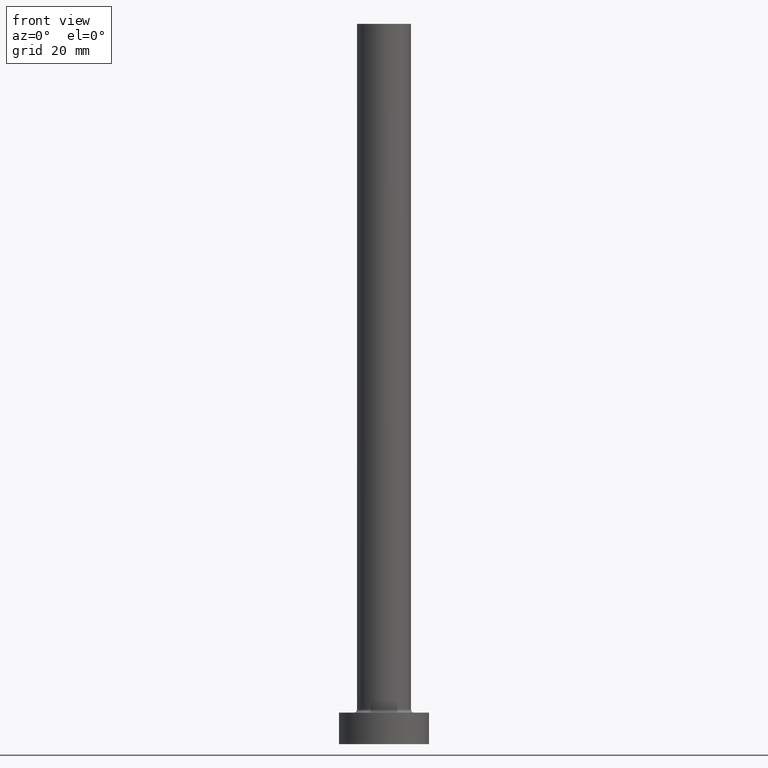
[diagram: clean part render]
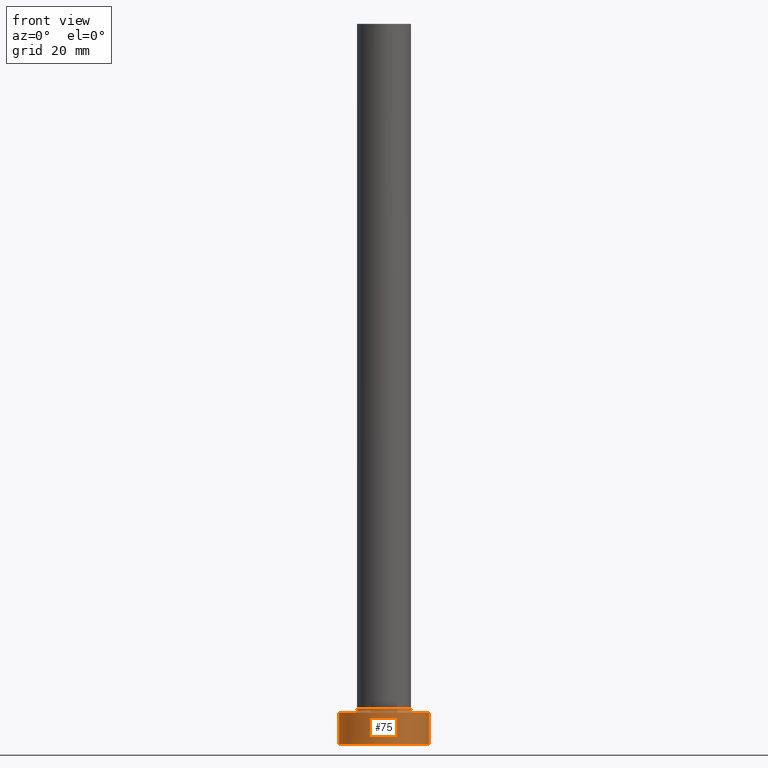
[diagram: same view with one face highlighted and labeled with its STEP entity id]
A machine part, front view. The second image highlights one B-rep face of the part: STEP entity #75.
In plain terms, the highlighted cylindrical surface (partial cylindrical patch) has radius 10 mm, axis along (-0, -0, -1).
Its self-contained STEP definition (entity closure, byte-faithful):
#33 = CIRCLE ( 'NONE', #403, 10.00000000000000000 ) ;
#37 = FACE_OUTER_BOUND ( 'NONE', #366, .T. ) ;
#48 = DIRECTION ( 'NONE',  ( -0.000000000000000000, -0.000000000000000000, -1.000000000000000000 ) ) ;
#75 = ADVANCED_FACE ( 'NONE', ( #37 ), #298, .T. ) ;
#87 = AXIS2_PLACEMENT_3D ( 'NONE', #217, #145, #363 ) ;
#107 = VERTEX_POINT ( 'NONE', #329 ) ;
#119 = DIRECTION ( 'NONE',  ( 1.000000000000000000, 0.000000000000000000, 0.000000000000000000 ) ) ;
#122 = CARTESIAN_POINT ( 'NONE',  ( 0.000000000000000000, 0.000000000000000000, 0.000000000000000000 ) ) ;
#126 = VERTEX_POINT ( 'NONE', #376 ) ;
#128 = CARTESIAN_POINT ( 'NONE',  ( 0.000000000000000000, 0.000000000000000000, 7.000000000000000000 ) ) ;
#145 = DIRECTION ( 'NONE',  ( -0.000000000000000000, -0.000000000000000000, -1.000000000000000000 ) ) ;
#147 = EDGE_CURVE ( 'NONE', #107, #126, #207, .T. ) ;
#207 = LINE ( 'NONE', #281, #383 ) ;
#211 = DIRECTION ( 'NONE',  ( 1.000000000000000000, 0.000000000000000000, 0.000000000000000000 ) ) ;
#217 = CARTESIAN_POINT ( 'NONE',  ( 0.000000000000000000, 0.000000000000000000, 7.000000000000000000 ) ) ;
#228 = AXIS2_PLACEMENT_3D ( 'NONE', #122, #273, #119 ) ;
#257 = CARTESIAN_POINT ( 'NONE',  ( -10.00000000000000000, 0.000000000000000000, 0.000000000000000000 ) ) ;
#263 = EDGE_CURVE ( 'NONE', #420, #126, #369, .T. ) ;
#273 = DIRECTION ( 'NONE',  ( 0.000000000000000000, 0.000000000000000000, 1.000000000000000000 ) ) ;
#281 = CARTESIAN_POINT ( 'NONE',  ( 10.00000000000000000, 1.224646799147353256E-15, 7.000000000000000000 ) ) ;
#283 = CARTESIAN_POINT ( 'NONE',  ( -10.00000000000000000, 0.000000000000000000, 7.000000000000000000 ) ) ;
#298 = CYLINDRICAL_SURFACE ( 'NONE', #87, 10.00000000000000000 ) ;
#299 = VECTOR ( 'NONE', #48, 1000.000000000000000 ) ;
#307 = ORIENTED_EDGE ( 'NONE', *, *, #263, .T. ) ;
#324 = ORIENTED_EDGE ( 'NONE', *, *, #147, .F. ) ;
#329 = CARTESIAN_POINT ( 'NONE',  ( 10.00000000000000000, 1.224646799147353256E-15, 7.000000000000000000 ) ) ;
#333 = ORIENTED_EDGE ( 'NONE', *, *, #365, .T. ) ;
#344 = VERTEX_POINT ( 'NONE', #283 ) ;
#348 = CARTESIAN_POINT ( 'NONE',  ( -10.00000000000000000, 0.000000000000000000, 7.000000000000000000 ) ) ;
#363 = DIRECTION ( 'NONE',  ( -1.000000000000000000, 0.000000000000000000, 0.000000000000000000 ) ) ;
#365 = EDGE_CURVE ( 'NONE', #344, #420, #382, .T. ) ;
#366 = EDGE_LOOP ( 'NONE', ( #324, #416, #333, #307 ) ) ;
#369 = CIRCLE ( 'NONE', #228, 10.00000000000000000 ) ;
#373 = EDGE_CURVE ( 'NONE', #344, #107, #33, .T. ) ;
#376 = CARTESIAN_POINT ( 'NONE',  ( 10.00000000000000000, 1.224646799147353256E-15, 0.000000000000000000 ) ) ;
#382 = LINE ( 'NONE', #348, #299 ) ;
#383 = VECTOR ( 'NONE', #415, 1000.000000000000000 ) ;
#403 = AXIS2_PLACEMENT_3D ( 'NONE', #128, #413, #211 ) ;
#413 = DIRECTION ( 'NONE',  ( 0.000000000000000000, 0.000000000000000000, 1.000000000000000000 ) ) ;
#415 = DIRECTION ( 'NONE',  ( -0.000000000000000000, -0.000000000000000000, -1.000000000000000000 ) ) ;
#416 = ORIENTED_EDGE ( 'NONE', *, *, #373, .F. ) ;
#420 = VERTEX_POINT ( 'NONE', #257 ) ;